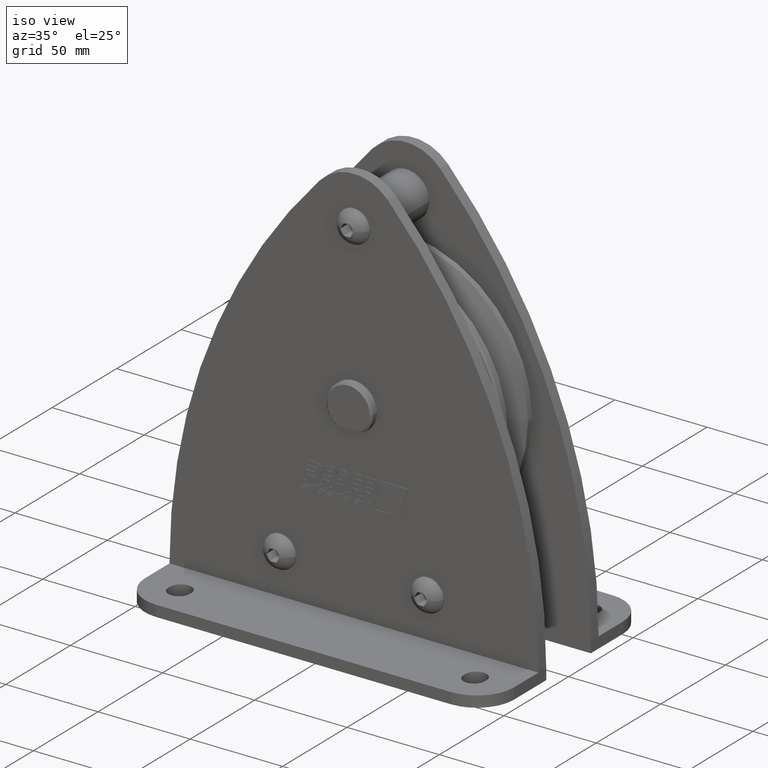
[diagram: clean part render]
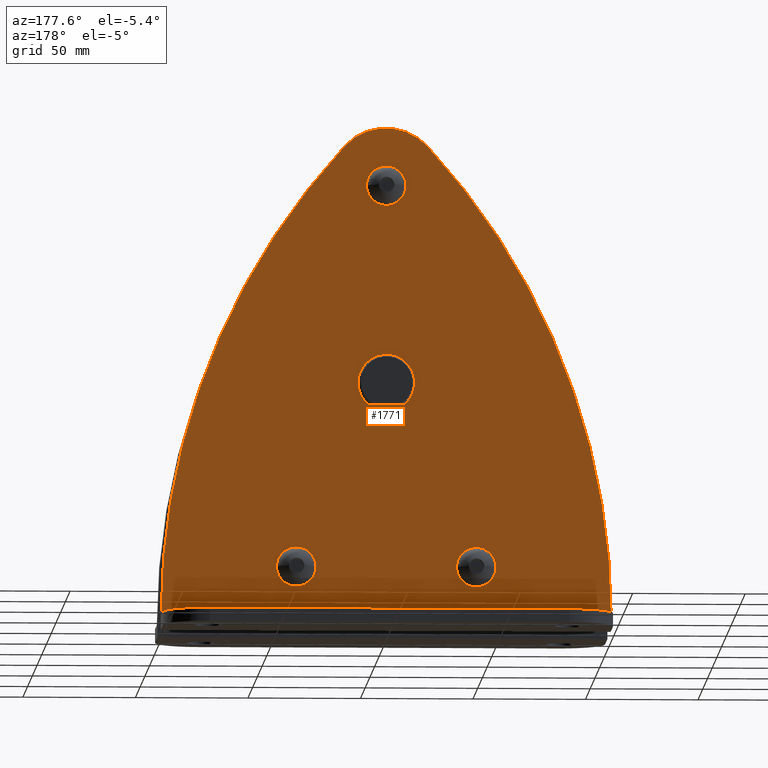
[diagram: tour spotlight — one face highlighted and labeled with its STEP entity id]
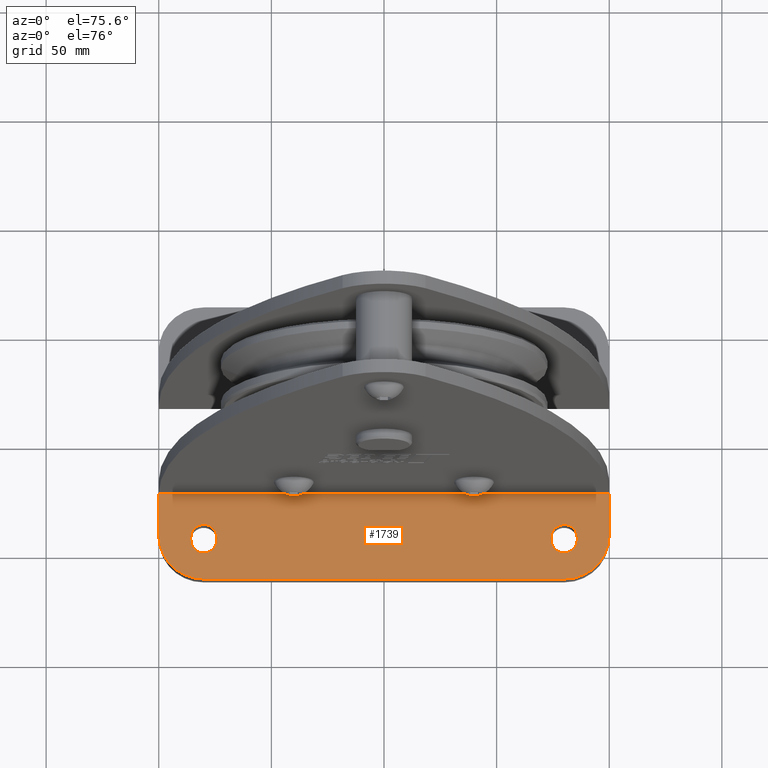
[diagram: tour spotlight — one face highlighted and labeled with its STEP entity id]
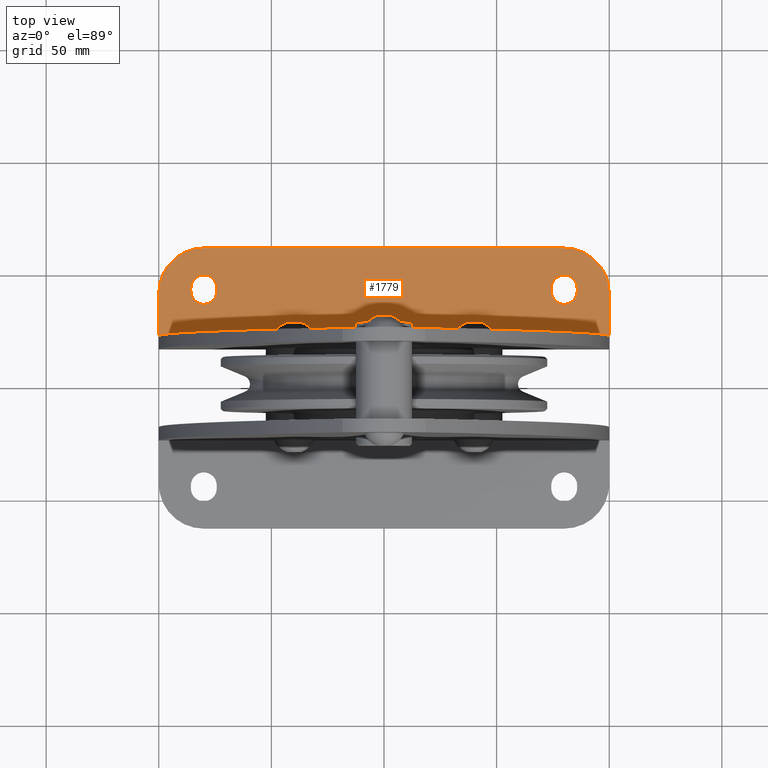
[diagram: tour spotlight — one face highlighted and labeled with its STEP entity id]
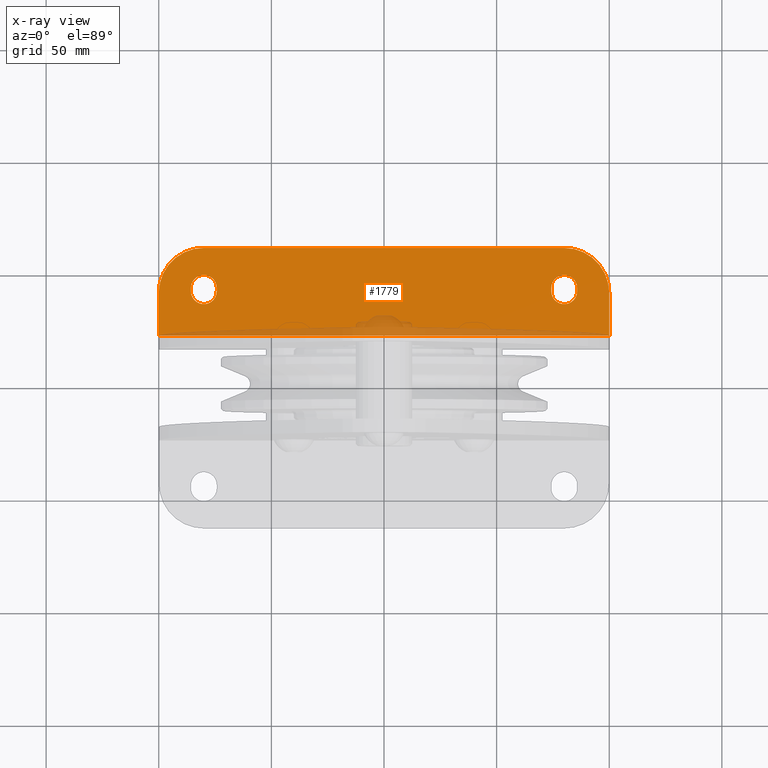
[diagram: x-ray of the same camera — body ghosted, this tour face saturated]
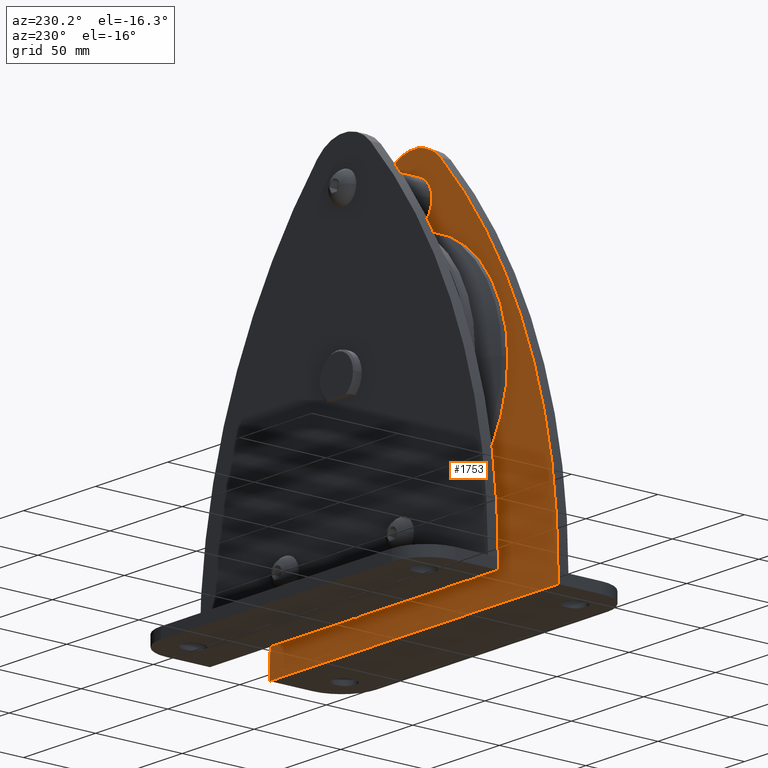
[diagram: tour spotlight — one face highlighted and labeled with its STEP entity id]
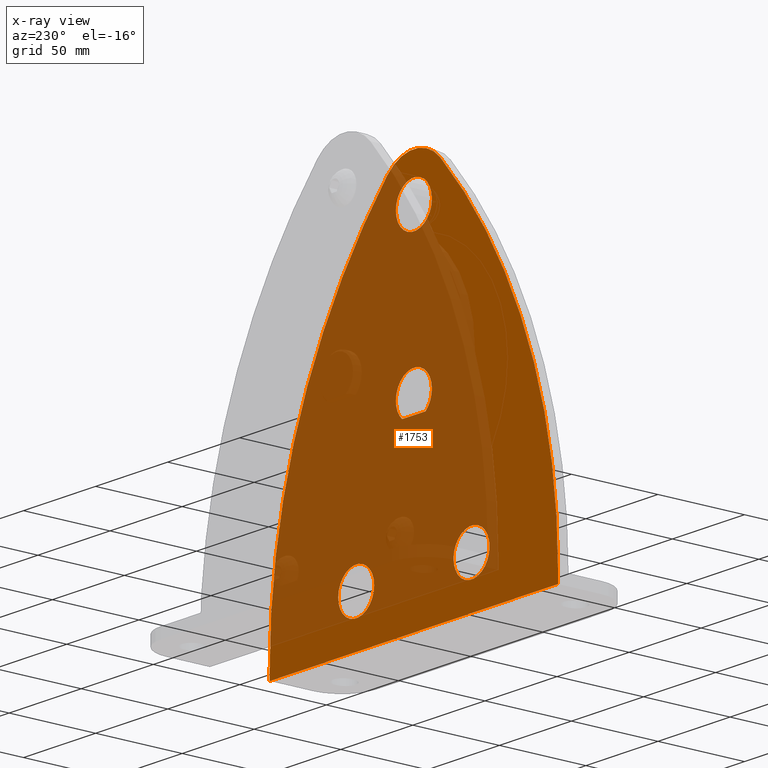
[diagram: x-ray of the same camera — body ghosted, this tour face saturated]
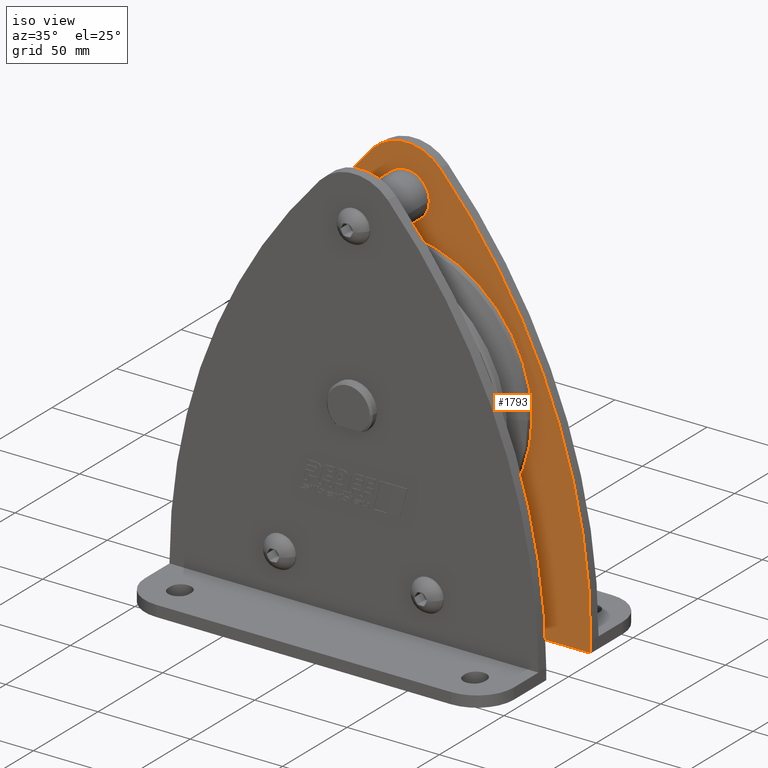
[diagram: tour spotlight — one face highlighted and labeled with its STEP entity id]
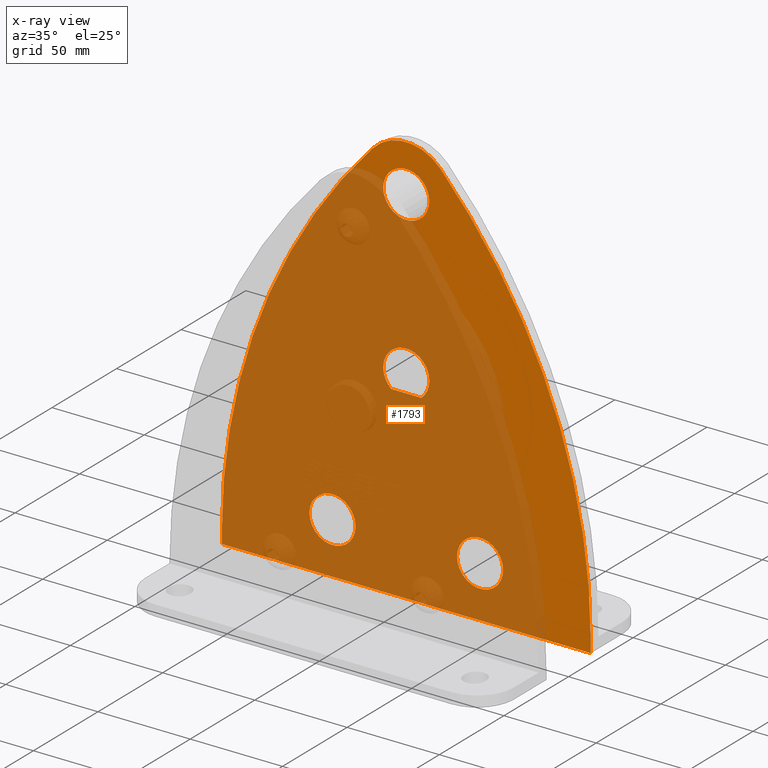
[diagram: x-ray of the same camera — body ghosted, this tour face saturated]
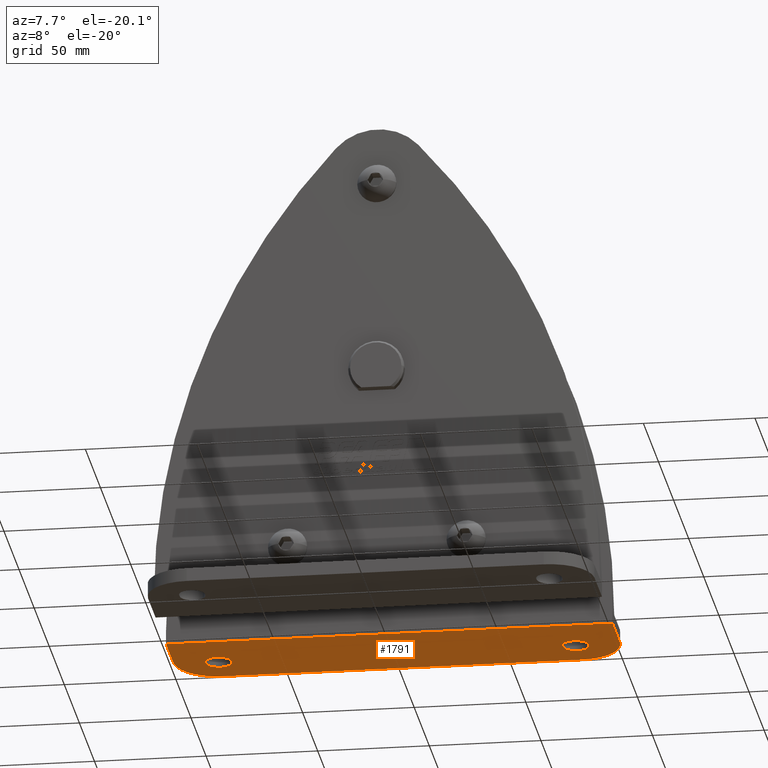
[diagram: tour spotlight — one face highlighted and labeled with its STEP entity id]
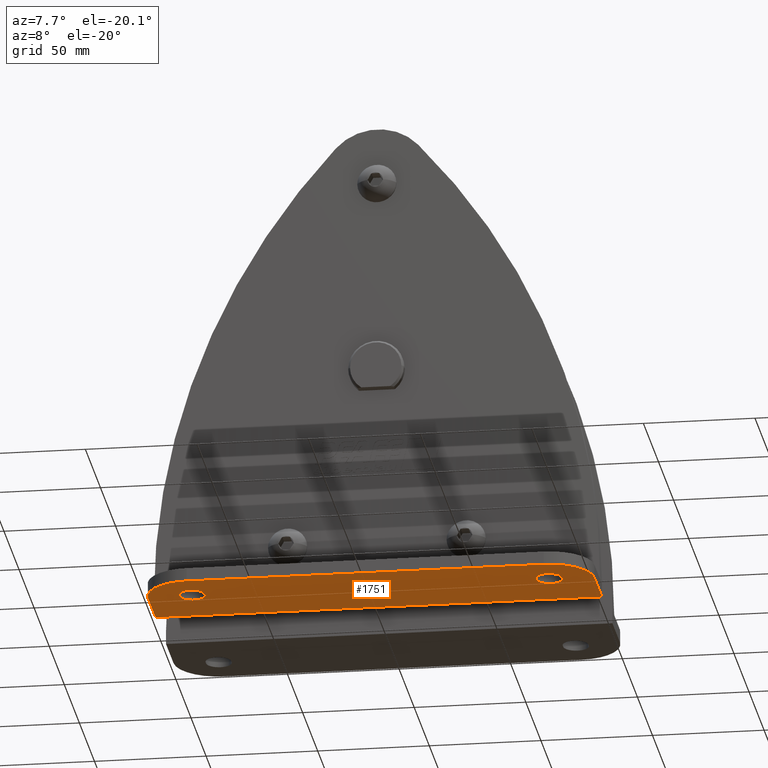
[diagram: tour spotlight — one face highlighted and labeled with its STEP entity id]
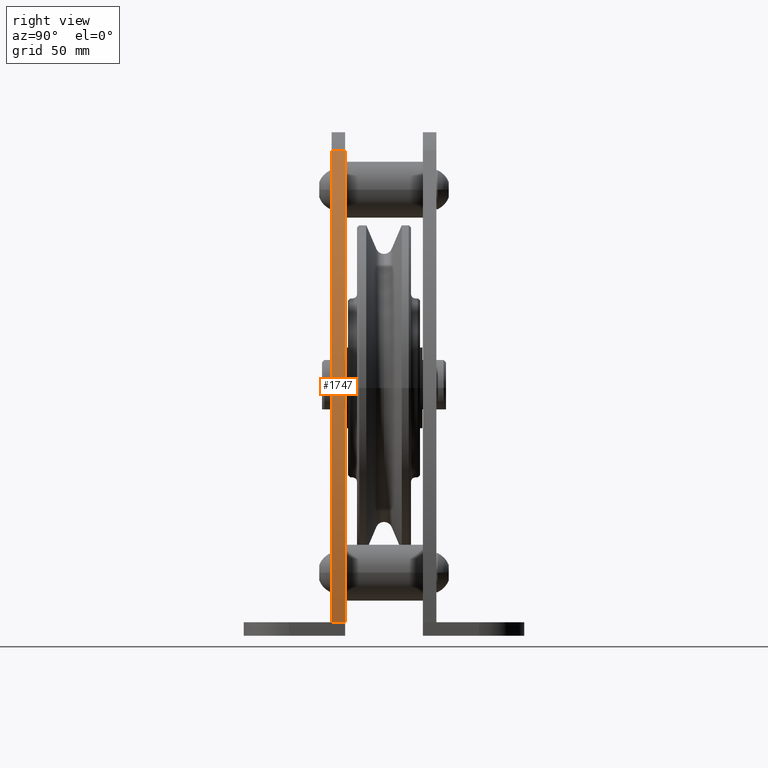
[diagram: tour spotlight — one face highlighted and labeled with its STEP entity id]
A machine part: a face-by-face anatomy tour. The part has 668 B-rep faces; the first image is the clean iso view, then the 8 largest visible faces are spotlighted one at a time (largest first), each with its STEP entity span.

Face 1 — auxiliary view, entity #1771. In plain terms, the highlighted planar face has unit normal (0, 1, 0).
Definition (entity closure, byte-faithful):
#1771=ADVANCED_FACE('',(#3725,#3726,#3727,#3728,#3729),#3730,.T.);
#3725=FACE_BOUND('',#5831,.T.);
#3726=FACE_BOUND('',#5832,.T.);
#3727=FACE_BOUND('',#5833,.T.);
#3728=FACE_OUTER_BOUND('',#5834,.T.);
#3729=FACE_BOUND('',#5835,.T.);
#3730=PLANE('',#5836);
#5831=EDGE_LOOP('',(#11465,#11466));
#5832=EDGE_LOOP('',(#11467,#11468));
#5833=EDGE_LOOP('',(#11469,#11470));
#5834=EDGE_LOOP('',(#11471,#11472,#11473,#11474));
#5835=EDGE_LOOP('',(#11475,#11476,#11477,#11478));
#5836=AXIS2_PLACEMENT_3D('',#11479,#11480,#11481);
#11465=ORIENTED_EDGE('',*,*,#12663,.T.);
#11466=ORIENTED_EDGE('',*,*,#14664,.T.);
#11467=ORIENTED_EDGE('',*,*,#13092,.T.);
#11468=ORIENTED_EDGE('',*,*,#14282,.T.);
#11469=ORIENTED_EDGE('',*,*,#12680,.T.);
#11470=ORIENTED_EDGE('',*,*,#14665,.T.);
#11471=ORIENTED_EDGE('',*,*,#14666,.T.);
#11472=ORIENTED_EDGE('',*,*,#14667,.F.);
#11473=ORIENTED_EDGE('',*,*,#14668,.F.);
#11474=ORIENTED_EDGE('',*,*,#14669,.F.);
#11475=ORIENTED_EDGE('',*,*,#14387,.T.);
#11476=ORIENTED_EDGE('',*,*,#13053,.T.);
#11477=ORIENTED_EDGE('',*,*,#13050,.T.);
#11478=ORIENTED_EDGE('',*,*,#14378,.T.);
#11479=CARTESIAN_POINT('',(9.95759030786303E-013,23.25,-22.7511777277924));
#11480=DIRECTION('',(0.0,1.0,0.0));
#11481=DIRECTION('',(-1.0,0.0,0.0));
#12663=EDGE_CURVE('',#15227,#15229,#15231,.T.);
#12680=EDGE_CURVE('',#15258,#15260,#15262,.T.);
#13050=EDGE_CURVE('',#15873,#15875,#15877,.T.);
#13053=EDGE_CURVE('',#15879,#15873,#15881,.T.);
#13092=EDGE_CURVE('',#15946,#15950,#15952,.T.);
#14282=EDGE_CURVE('',#15950,#15946,#17721,.T.);
#14378=EDGE_CURVE('',#15875,#17849,#17850,.T.);
#14387=EDGE_CURVE('',#17849,#15879,#17863,.T.);
#14664=EDGE_CURVE('',#15229,#15227,#18202,.T.);
#14665=EDGE_CURVE('',#15260,#15258,#18203,.T.);
#14666=EDGE_CURVE('',#18204,#18205,#18206,.T.);
#14667=EDGE_CURVE('',#18207,#18205,#18208,.T.);
#14668=EDGE_CURVE('',#18209,#18207,#18210,.T.);
#14669=EDGE_CURVE('',#18204,#18209,#18211,.T.);
#15227=VERTEX_POINT('',#19631);
#15229=VERTEX_POINT('',#19634);
#15231=CIRCLE('',#19637,8.75);
#15258=VERTEX_POINT('',#19682);
#15260=VERTEX_POINT('',#19685);
#15262=CIRCLE('',#19688,8.75);
#15873=VERTEX_POINT('',#21984);
#15875=VERTEX_POINT('',#21987);
#15877=CIRCLE('',#21990,12.5);
#15879=VERTEX_POINT('',#21992);
#15881=CIRCLE('',#21995,12.5);
#15946=VERTEX_POINT('',#22100);
#15950=VERTEX_POINT('',#22105);
#15952=CIRCLE('',#22108,8.75);
#17721=CIRCLE('',#24542,8.75);
#17849=VERTEX_POINT('',#24756);
#17850=LINE('',#24757,#24758);
#17863=CIRCLE('',#24785,12.5);
#18202=CIRCLE('',#25941,8.75);
#18203=CIRCLE('',#25942,8.75);
#18204=VERTEX_POINT('',#25943);
#18205=VERTEX_POINT('',#25944);
#18206=LINE('',#25945,#25946);
#18207=VERTEX_POINT('',#25947);
#18208=CIRCLE('',#25948,309.999999979701);
#18209=VERTEX_POINT('',#25949);
#18210=CIRCLE('',#25950,24.999999988);
#18211=CIRCLE('',#25951,309.999999979699);
#19631=CARTESIAN_POINT('',(-31.25,23.25,-82.0));
#19634=CARTESIAN_POINT('',(-48.75,23.25,-82.0));
#19637=AXIS2_PLACEMENT_3D('',#26768,#26769,#26770);
#19682=CARTESIAN_POINT('',(8.75,23.25,88.0));
#19685=CARTESIAN_POINT('',(-8.75,23.25,88.0));
#19688=AXIS2_PLACEMENT_3D('',#26791,#26792,#26793);
#21984=CARTESIAN_POINT('',(-12.5,23.25,1.53080849893419E-015));
#21987=CARTESIAN_POINT('',(-8.12403840463596,23.25,-9.5));
#21990=AXIS2_PLACEMENT_3D('',#27290,#27291,#27292);
#21992=CARTESIAN_POINT('',(12.5,23.25,-1.53080849893419E-015));
#21995=AXIS2_PLACEMENT_3D('',#27294,#27295,#27296);
#22100=CARTESIAN_POINT('',(48.75,23.25,-82.0));
#22105=CARTESIAN_POINT('',(31.25,23.25,-82.0));
#22108=AXIS2_PLACEMENT_3D('',#27348,#27349,#27350);
#24542=AXIS2_PLACEMENT_3D('',#28676,#28677,#28678);
#24756=CARTESIAN_POINT('',(8.12403840463596,23.25,-9.5));
#24757=CARTESIAN_POINT('',(0.0,23.25,-9.5));
#24758=VECTOR('',#28744,1.0);
#24785=AXIS2_PLACEMENT_3D('',#28750,#28751,#28752);
#25941=AXIS2_PLACEMENT_3D('',#29021,#29022,#29023);
#25942=AXIS2_PLACEMENT_3D('',#29024,#29025,#29026);
#25943=CARTESIAN_POINT('',(100.0,23.25,-103.999999999964));
#25944=CARTESIAN_POINT('',(-100.0,23.25,-104.0));
#25945=CARTESIAN_POINT('',(4.54747350886464E-013,23.25,-104.0));
#25946=VECTOR('',#29027,1.0);
#25947=CARTESIAN_POINT('',(-18.4210526299208,23.25,105.580110490116));
#25948=AXIS2_PLACEMENT_3D('',#29028,#29029,#29030);
#25949=CARTESIAN_POINT('',(18.421052630019,23.25,105.580110489983));
#25950=AXIS2_PLACEMENT_3D('',#29031,#29032,#29033);
#25951=AXIS2_PLACEMENT_3D('',#29034,#29035,#29036);
#26768=CARTESIAN_POINT('',(-40.0,23.25,-82.0));
#26769=DIRECTION('',(0.0,-1.0,0.0));
#26770=DIRECTION('',(1.0,0.0,0.0));
#26791=CARTESIAN_POINT('',(0.0,23.25,88.0));
#26792=DIRECTION('',(0.0,-1.0,0.0));
#26793=DIRECTION('',(1.0,0.0,0.0));
#27290=CARTESIAN_POINT('',(0.0,23.25,0.0));
#27291=DIRECTION('',(-0.0,-1.0,-0.0));
#27292=DIRECTION('',(-1.0,0.0,0.0));
#27294=CARTESIAN_POINT('',(0.0,23.25,0.0));
#27295=DIRECTION('',(-0.0,-1.0,-0.0));
#27296=DIRECTION('',(-1.0,0.0,0.0));
#27348=CARTESIAN_POINT('',(40.0,23.25,-82.0));
#27349=DIRECTION('',(0.0,-1.0,0.0));
#27350=DIRECTION('',(1.0,0.0,0.0));
#28676=CARTESIAN_POINT('',(40.0,23.25,-82.0));
#28677=DIRECTION('',(0.0,-1.0,0.0));
#28678=DIRECTION('',(1.0,0.0,0.0));
#28744=DIRECTION('',(1.0,0.0,0.0));
#28750=CARTESIAN_POINT('',(0.0,23.25,0.0));
#28751=DIRECTION('',(-0.0,-1.0,-0.0));
#28752=DIRECTION('',(-1.0,0.0,0.0));
#29021=CARTESIAN_POINT('',(-40.0,23.25,-82.0));
#29022=DIRECTION('',(0.0,-1.0,0.0));
#29023=DIRECTION('',(1.0,0.0,0.0));
#29024=CARTESIAN_POINT('',(0.0,23.25,88.0));
#29025=DIRECTION('',(0.0,-1.0,0.0));
#29026=DIRECTION('',(1.0,0.0,0.0));
#29027=DIRECTION('',(-1.0,0.0,0.0));
#29028=CARTESIAN_POINT('',(209.999999979701,23.25,-103.9999999978));
#29029=DIRECTION('',(0.0,-1.0,-0.0));
#29030=DIRECTION('',(-1.0,0.0,-6.97995926336286E-012));
#29031=CARTESIAN_POINT('',(0.0,23.25,88.678488692));
#29032=DIRECTION('',(0.0,-1.0,0.0));
#29033=DIRECTION('',(-0.736842105554445,0.0,0.676064872243849));
#29034=CARTESIAN_POINT('',(-209.999999979699,23.25,-103.9999999978));
#29035=DIRECTION('',(0.0,-1.0,0.0));
#29036=DIRECTION('',(0.736842105240575,0.0,0.676064872585936));

Face 2 — auxiliary view, entity #1739. In plain terms, the highlighted planar face has unit normal (0, 0, 1).
Definition (entity closure, byte-faithful):
#1739=ADVANCED_FACE('',(#3669,#3670,#3671),#3672,.T.);
#3669=FACE_BOUND('',#5775,.T.);
#3670=FACE_BOUND('',#5776,.T.);
#3671=FACE_OUTER_BOUND('',#5777,.T.);
#3672=PLANE('',#5778);
#5775=EDGE_LOOP('',(#11303,#11304,#11305,#11306));
#5776=EDGE_LOOP('',(#11307,#11308,#11309,#11310));
#5777=EDGE_LOOP('',(#11311,#11312,#11313,#11314,#11315,#11316));
#5778=AXIS2_PLACEMENT_3D('',#11317,#11318,#11319);
#11303=ORIENTED_EDGE('',*,*,#14566,.T.);
#11304=ORIENTED_EDGE('',*,*,#14577,.T.);
#11305=ORIENTED_EDGE('',*,*,#14574,.T.);
#11306=ORIENTED_EDGE('',*,*,#14569,.T.);
#11307=ORIENTED_EDGE('',*,*,#14582,.T.);
#11308=ORIENTED_EDGE('',*,*,#14593,.T.);
#11309=ORIENTED_EDGE('',*,*,#14590,.T.);
#11310=ORIENTED_EDGE('',*,*,#14585,.T.);
#11311=ORIENTED_EDGE('',*,*,#14597,.F.);
#11312=ORIENTED_EDGE('',*,*,#14607,.F.);
#11313=ORIENTED_EDGE('',*,*,#14602,.F.);
#11314=ORIENTED_EDGE('',*,*,#14610,.F.);
#11315=ORIENTED_EDGE('',*,*,#13387,.F.);
#11316=ORIENTED_EDGE('',*,*,#14611,.F.);
#11317=CARTESIAN_POINT('',(9.32587340685131E-014,-41.8635175654384,-104.0));
#11318=DIRECTION('',(0.0,0.0,1.0));
#11319=DIRECTION('',(1.0,0.0,0.0));
#13387=EDGE_CURVE('',#16488,#16489,#16490,.T.);
#14566=EDGE_CURVE('',#18061,#18059,#18062,.T.);
#14569=EDGE_CURVE('',#18065,#18061,#18066,.T.);
#14574=EDGE_CURVE('',#18073,#18065,#18074,.T.);
#14577=EDGE_CURVE('',#18059,#18073,#18077,.T.);
#14582=EDGE_CURVE('',#18085,#18083,#18086,.T.);
#14585=EDGE_CURVE('',#18089,#18085,#18090,.T.);
#14590=EDGE_CURVE('',#18097,#18089,#18098,.T.);
#14593=EDGE_CURVE('',#18083,#18097,#18101,.T.);
#14597=EDGE_CURVE('',#18105,#18106,#18107,.T.);
#14602=EDGE_CURVE('',#18114,#18115,#18116,.T.);
#14607=EDGE_CURVE('',#18115,#18105,#18123,.T.);
#14610=EDGE_CURVE('',#16489,#18114,#18126,.T.);
#14611=EDGE_CURVE('',#18106,#16488,#18127,.T.);
#16488=VERTEX_POINT('',#22825);
#16489=VERTEX_POINT('',#22826);
#16490=LINE('',#22827,#22828);
#18059=VERTEX_POINT('',#25749);
#18061=VERTEX_POINT('',#25752);
#18062=CIRCLE('',#25753,5.75);
#18065=VERTEX_POINT('',#25757);
#18066=LINE('',#25758,#25759);
#18073=VERTEX_POINT('',#25768);
#18074=CIRCLE('',#25769,5.75);
#18077=LINE('',#25773,#25774);
#18083=VERTEX_POINT('',#25781);
#18085=VERTEX_POINT('',#25784);
#18086=CIRCLE('',#25785,5.75);
#18089=VERTEX_POINT('',#25789);
#18090=LINE('',#25790,#25791);
#18097=VERTEX_POINT('',#25800);
#18098=CIRCLE('',#25801,5.75);
#18101=LINE('',#25805,#25806);
#18105=VERTEX_POINT('',#25811);
#18106=VERTEX_POINT('',#25812);
#18107=CIRCLE('',#25813,20.0000000127);
#18114=VERTEX_POINT('',#25822);
#18115=VERTEX_POINT('',#25823);
#18116=CIRCLE('',#25824,20.0000000127);
#18123=LINE('',#25833,#25834);
#18126=LINE('',#25838,#25839);
#18127=LINE('',#25840,#25841);
#22825=CARTESIAN_POINT('',(-100.0,-23.25,-103.999999999964));
#22826=CARTESIAN_POINT('',(100.0,-23.25,-104.0));
#22827=CARTESIAN_POINT('',(-4.54747350886464E-013,-23.25,-104.0));
#22828=VECTOR('',#27808,1.0);
#25749=CARTESIAN_POINT('',(74.25,-44.5,-104.0));
#25752=CARTESIAN_POINT('',(85.75,-44.5,-104.0));
#25753=AXIS2_PLACEMENT_3D('',#28907,#28908,#28909);
#25757=CARTESIAN_POINT('',(85.75,-43.0,-104.0));
#25758=CARTESIAN_POINT('',(85.75,-42.8067587827192,-104.0));
#25759=VECTOR('',#28911,1.0);
#25768=CARTESIAN_POINT('',(74.25,-43.0,-104.0));
#25769=AXIS2_PLACEMENT_3D('',#28917,#28918,#28919);
#25773=CARTESIAN_POINT('',(74.25,-42.8067587827192,-104.0));
#25774=VECTOR('',#28921,1.0);
#25781=CARTESIAN_POINT('',(-85.75,-44.5,-104.0));
#25784=CARTESIAN_POINT('',(-74.25,-44.5,-104.0));
#25785=AXIS2_PLACEMENT_3D('',#28927,#28928,#28929);
#25789=CARTESIAN_POINT('',(-74.25,-43.0,-104.0));
#25790=CARTESIAN_POINT('',(-74.25,-42.8067587827192,-104.0));
#25791=VECTOR('',#28931,1.0);
#25800=CARTESIAN_POINT('',(-85.75,-43.0,-104.0));
#25801=AXIS2_PLACEMENT_3D('',#28937,#28938,#28939);
#25805=CARTESIAN_POINT('',(-85.75,-42.8067587827192,-104.0));
#25806=VECTOR('',#28941,1.0);
#25811=CARTESIAN_POINT('',(-80.0,-62.25,-104.0));
#25812=CARTESIAN_POINT('',(-100.0,-42.25,-104.0));
#25813=AXIS2_PLACEMENT_3D('',#28943,#28944,#28945);
#25822=CARTESIAN_POINT('',(100.0,-42.2500000000409,-104.0));
#25823=CARTESIAN_POINT('',(80.0,-62.25,-104.0));
#25824=AXIS2_PLACEMENT_3D('',#28951,#28952,#28953);
#25833=CARTESIAN_POINT('',(-80.0,-62.25,-104.0));
#25834=VECTOR('',#28959,1.0);
#25838=CARTESIAN_POINT('',(100.0,-42.25,-104.0));
#25839=VECTOR('',#28961,1.0);
#25840=CARTESIAN_POINT('',(-100.0,-23.25,-104.0));
#25841=VECTOR('',#28962,1.0);
#27808=DIRECTION('',(1.0,0.0,-0.0));
#28907=CARTESIAN_POINT('',(80.0,-44.5,-104.0));
#28908=DIRECTION('',(0.0,0.0,-1.0));
#28909=DIRECTION('',(1.0,5.02013889395723E-016,0.0));
#28911=DIRECTION('',(-0.0,-1.0,0.0));
#28917=CARTESIAN_POINT('',(80.0,-43.0,-104.0));
#28918=DIRECTION('',(-0.0,0.0,-1.0));
#28919=DIRECTION('',(-1.0,-2.31698718182641E-016,0.0));
#28921=DIRECTION('',(0.0,1.0,-0.0));
#28927=CARTESIAN_POINT('',(-80.0,-44.5,-104.0));
#28928=DIRECTION('',(0.0,0.0,-1.0));
#28929=DIRECTION('',(1.0,5.02013889395723E-016,0.0));
#28931=DIRECTION('',(-0.0,-1.0,0.0));
#28937=CARTESIAN_POINT('',(-80.0,-43.0,-104.0));
#28938=DIRECTION('',(-0.0,0.0,-1.0));
#28939=DIRECTION('',(-1.0,-2.31698718182641E-016,0.0));
#28941=DIRECTION('',(0.0,1.0,-0.0));
#28943=CARTESIAN_POINT('',(-79.9999999873,-42.2499999873,-104.0));
#28944=DIRECTION('',(-0.0,0.0,-1.0));
#28945=DIRECTION('',(-1.0,-6.37044905311288E-010,0.0));
#28951=CARTESIAN_POINT('',(79.9999999873,-42.2499999873,-104.0));
#28952=DIRECTION('',(0.0,-0.0,-1.0));
#28953=DIRECTION('',(6.37043484225818E-010,-1.0,0.0));
#28959=DIRECTION('',(-1.0,-0.0,-0.0));
#28961=DIRECTION('',(-0.0,-1.0,-0.0));
#28962=DIRECTION('',(0.0,1.0,0.0));

Face 3 — top view, entity #1779. An x-ray twin of the same camera follows (body ghosted, this face saturated) — the face is partly hidden behind the body. In plain terms, the highlighted planar face has unit normal (0, 0, 1).
Definition (entity closure, byte-faithful):
#1779=ADVANCED_FACE('',(#3741,#3742,#3743),#3744,.T.);
#3741=FACE_BOUND('',#5847,.T.);
#3742=FACE_BOUND('',#5848,.T.);
#3743=FACE_OUTER_BOUND('',#5849,.T.);
#3744=PLANE('',#5850);
#5847=EDGE_LOOP('',(#11507,#11508,#11509,#11510));
#5848=EDGE_LOOP('',(#11511,#11512,#11513,#11514));
#5849=EDGE_LOOP('',(#11515,#11516,#11517,#11518,#11519,#11520));
#5850=AXIS2_PLACEMENT_3D('',#11521,#11522,#11523);
#11507=ORIENTED_EDGE('',*,*,#14634,.T.);
#11508=ORIENTED_EDGE('',*,*,#14645,.T.);
#11509=ORIENTED_EDGE('',*,*,#14642,.T.);
#11510=ORIENTED_EDGE('',*,*,#14637,.T.);
#11511=ORIENTED_EDGE('',*,*,#14650,.T.);
#11512=ORIENTED_EDGE('',*,*,#14661,.T.);
#11513=ORIENTED_EDGE('',*,*,#14658,.T.);
#11514=ORIENTED_EDGE('',*,*,#14653,.T.);
#11515=ORIENTED_EDGE('',*,*,#14671,.F.);
#11516=ORIENTED_EDGE('',*,*,#14681,.F.);
#11517=ORIENTED_EDGE('',*,*,#14676,.F.);
#11518=ORIENTED_EDGE('',*,*,#14684,.F.);
#11519=ORIENTED_EDGE('',*,*,#14666,.F.);
#11520=ORIENTED_EDGE('',*,*,#14685,.F.);
#11521=CARTESIAN_POINT('',(-9.32587340685131E-014,41.8635175654384,-104.0));
#11522=DIRECTION('',(0.0,0.0,1.0));
#11523=DIRECTION('',(-1.0,0.0,0.0));
#14634=EDGE_CURVE('',#18159,#18157,#18160,.T.);
#14637=EDGE_CURVE('',#18163,#18159,#18164,.T.);
#14642=EDGE_CURVE('',#18171,#18163,#18172,.T.);
#14645=EDGE_CURVE('',#18157,#18171,#18175,.T.);
#14650=EDGE_CURVE('',#18183,#18181,#18184,.T.);
#14653=EDGE_CURVE('',#18187,#18183,#18188,.T.);
#14658=EDGE_CURVE('',#18195,#18187,#18196,.T.);
#14661=EDGE_CURVE('',#18181,#18195,#18199,.T.);
#14666=EDGE_CURVE('',#18204,#18205,#18206,.T.);
#14671=EDGE_CURVE('',#18213,#18214,#18215,.T.);
#14676=EDGE_CURVE('',#18222,#18223,#18224,.T.);
#14681=EDGE_CURVE('',#18223,#18213,#18231,.T.);
#14684=EDGE_CURVE('',#18205,#18222,#18234,.T.);
#14685=EDGE_CURVE('',#18214,#18204,#18235,.T.);
#18157=VERTEX_POINT('',#25880);
#18159=VERTEX_POINT('',#25883);
#18160=CIRCLE('',#25884,5.75);
#18163=VERTEX_POINT('',#25888);
#18164=LINE('',#25889,#25890);
#18171=VERTEX_POINT('',#25899);
#18172=CIRCLE('',#25900,5.75);
#18175=LINE('',#25904,#25905);
#18181=VERTEX_POINT('',#25912);
#18183=VERTEX_POINT('',#25915);
#18184=CIRCLE('',#25916,5.75);
#18187=VERTEX_POINT('',#25920);
#18188=LINE('',#25921,#25922);
#18195=VERTEX_POINT('',#25931);
#18196=CIRCLE('',#25932,5.75);
#18199=LINE('',#25936,#25937);
#18204=VERTEX_POINT('',#25943);
#18205=VERTEX_POINT('',#25944);
#18206=LINE('',#25945,#25946);
#18213=VERTEX_POINT('',#25953);
#18214=VERTEX_POINT('',#25954);
#18215=CIRCLE('',#25955,20.0000000127);
#18222=VERTEX_POINT('',#25964);
#18223=VERTEX_POINT('',#25965);
#18224=CIRCLE('',#25966,20.0000000127);
#18231=LINE('',#25975,#25976);
#18234=LINE('',#25980,#25981);
#18235=LINE('',#25982,#25983);
#25880=CARTESIAN_POINT('',(-74.25,44.5,-104.0));
#25883=CARTESIAN_POINT('',(-85.75,44.5,-104.0));
#25884=AXIS2_PLACEMENT_3D('',#28985,#28986,#28987);
#25888=CARTESIAN_POINT('',(-85.75,43.0,-104.0));
#25889=CARTESIAN_POINT('',(-85.75,42.8067587827192,-104.0));
#25890=VECTOR('',#28989,1.0);
#25899=CARTESIAN_POINT('',(-74.25,43.0,-104.0));
#25900=AXIS2_PLACEMENT_3D('',#28995,#28996,#28997);
#25904=CARTESIAN_POINT('',(-74.25,42.8067587827192,-104.0));
#25905=VECTOR('',#28999,1.0);
#25912=CARTESIAN_POINT('',(85.75,44.5,-104.0));
#25915=CARTESIAN_POINT('',(74.25,44.5,-104.0));
#25916=AXIS2_PLACEMENT_3D('',#29005,#29006,#29007);
#25920=CARTESIAN_POINT('',(74.25,43.0,-104.0));
#25921=CARTESIAN_POINT('',(74.25,42.8067587827192,-104.0));
#25922=VECTOR('',#29009,1.0);
#25931=CARTESIAN_POINT('',(85.75,43.0,-104.0));
#25932=AXIS2_PLACEMENT_3D('',#29015,#29016,#29017);
#25936=CARTESIAN_POINT('',(85.75,42.8067587827192,-104.0));
#25937=VECTOR('',#29019,1.0);
#25943=CARTESIAN_POINT('',(100.0,23.25,-103.999999999964));
#25944=CARTESIAN_POINT('',(-100.0,23.25,-104.0));
#25945=CARTESIAN_POINT('',(4.54747350886464E-013,23.25,-104.0));
#25946=VECTOR('',#29027,1.0);
#25953=CARTESIAN_POINT('',(80.0,62.25,-104.0));
#25954=CARTESIAN_POINT('',(100.0,42.25,-104.0));
#25955=AXIS2_PLACEMENT_3D('',#29037,#29038,#29039);
#25964=CARTESIAN_POINT('',(-100.0,42.2500000000409,-104.0));
#25965=CARTESIAN_POINT('',(-80.0,62.25,-104.0));
#25966=AXIS2_PLACEMENT_3D('',#29045,#29046,#29047);
#25975=CARTESIAN_POINT('',(80.0,62.25,-104.0));
#25976=VECTOR('',#29053,1.0);
#25980=CARTESIAN_POINT('',(-100.0,42.25,-104.0));
#25981=VECTOR('',#29055,1.0);
#25982=CARTESIAN_POINT('',(100.0,23.25,-104.0));
#25983=VECTOR('',#29056,1.0);
#28985=CARTESIAN_POINT('',(-80.0,44.5,-104.0));
#28986=DIRECTION('',(-0.0,0.0,-1.0));
#28987=DIRECTION('',(-1.0,-5.02013889395723E-016,0.0));
#28989=DIRECTION('',(0.0,1.0,-0.0));
#28995=CARTESIAN_POINT('',(-80.0,43.0,-104.0));
#28996=DIRECTION('',(0.0,0.0,-1.0));
#28997=DIRECTION('',(1.0,2.31698718182641E-016,0.0));
#28999=DIRECTION('',(0.0,-1.0,0.0));
#29005=CARTESIAN_POINT('',(80.0,44.5,-104.0));
#29006=DIRECTION('',(-0.0,0.0,-1.0));
#29007=DIRECTION('',(-1.0,-5.02013889395723E-016,0.0));
#29009=DIRECTION('',(0.0,1.0,-0.0));
#29015=CARTESIAN_POINT('',(80.0,43.0,-104.0));
#29016=DIRECTION('',(0.0,0.0,-1.0));
#29017=DIRECTION('',(1.0,2.31698718182641E-016,0.0));
#29019=DIRECTION('',(0.0,-1.0,0.0));
#29027=DIRECTION('',(-1.0,0.0,0.0));
#29037=CARTESIAN_POINT('',(79.9999999873,42.2499999873,-104.0));
#29038=DIRECTION('',(0.0,0.0,-1.0));
#29039=DIRECTION('',(1.0,6.37044905311288E-010,0.0));
#29045=CARTESIAN_POINT('',(-79.9999999873,42.2499999873,-104.0));
#29046=DIRECTION('',(0.0,0.0,-1.0));
#29047=DIRECTION('',(-6.37043484225818E-010,1.0,0.0));
#29053=DIRECTION('',(1.0,0.0,-0.0));
#29055=DIRECTION('',(0.0,1.0,-0.0));
#29056=DIRECTION('',(0.0,-1.0,0.0));

Face 4 — auxiliary view, entity #1753. An x-ray twin of the same camera follows (body ghosted, this face saturated) — the face is partly hidden behind the body. In plain terms, the highlighted planar face has unit normal (0, -1, 0).
Definition (entity closure, byte-faithful):
#1753=ADVANCED_FACE('',(#3694,#3695,#3696,#3697,#3698),#3699,.F.);
#3694=FACE_BOUND('',#5800,.T.);
#3695=FACE_BOUND('',#5801,.T.);
#3696=FACE_BOUND('',#5802,.T.);
#3697=FACE_BOUND('',#5803,.T.);
#3698=FACE_OUTER_BOUND('',#5804,.T.);
#3699=PLANE('',#5805);
#5800=EDGE_LOOP('',(#11381,#11382));
#5801=EDGE_LOOP('',(#11383,#11384));
#5802=EDGE_LOOP('',(#11385,#11386));
#5803=EDGE_LOOP('',(#11387,#11388,#11389,#11390));
#5804=EDGE_LOOP('',(#11391,#11392,#11393,#11394,#11395,#11396));
#5805=AXIS2_PLACEMENT_3D('',#11397,#11398,#11399);
#11381=ORIENTED_EDGE('',*,*,#12712,.T.);
#11382=ORIENTED_EDGE('',*,*,#14555,.T.);
#11383=ORIENTED_EDGE('',*,*,#12707,.T.);
#11384=ORIENTED_EDGE('',*,*,#14558,.T.);
#11385=ORIENTED_EDGE('',*,*,#12702,.T.);
#11386=ORIENTED_EDGE('',*,*,#14561,.T.);
#11387=ORIENTED_EDGE('',*,*,#14400,.T.);
#11388=ORIENTED_EDGE('',*,*,#13025,.T.);
#11389=ORIENTED_EDGE('',*,*,#13021,.T.);
#11390=ORIENTED_EDGE('',*,*,#14374,.T.);
#11391=ORIENTED_EDGE('',*,*,#14629,.F.);
#11392=ORIENTED_EDGE('',*,*,#14615,.F.);
#11393=ORIENTED_EDGE('',*,*,#14618,.F.);
#11394=ORIENTED_EDGE('',*,*,#14621,.F.);
#11395=ORIENTED_EDGE('',*,*,#14624,.F.);
#11396=ORIENTED_EDGE('',*,*,#14627,.F.);
#11397=CARTESIAN_POINT('',(-9.96536186903541E-013,-17.25,-22.7511777277924));
#11398=DIRECTION('',(0.0,-1.0,0.0));
#11399=DIRECTION('',(1.0,0.0,0.0));
#12702=EDGE_CURVE('',#15296,#15300,#15302,.T.);
#12707=EDGE_CURVE('',#15305,#15309,#15311,.T.);
#12712=EDGE_CURVE('',#15314,#15318,#15320,.T.);
#13021=EDGE_CURVE('',#15824,#15829,#15831,.T.);
#13025=EDGE_CURVE('',#15834,#15824,#15837,.T.);
#14374=EDGE_CURVE('',#15829,#17843,#17844,.T.);
#14400=EDGE_CURVE('',#17843,#15834,#17876,.T.);
#14555=EDGE_CURVE('',#15318,#15314,#18047,.T.);
#14558=EDGE_CURVE('',#15309,#15305,#18050,.T.);
#14561=EDGE_CURVE('',#15300,#15296,#18053,.T.);
#14615=EDGE_CURVE('',#18131,#18129,#18133,.T.);
#14618=EDGE_CURVE('',#18135,#18131,#18137,.T.);
#14621=EDGE_CURVE('',#18139,#18135,#18141,.T.);
#14624=EDGE_CURVE('',#18143,#18139,#18145,.T.);
#14627=EDGE_CURVE('',#18147,#18143,#18149,.T.);
#14629=EDGE_CURVE('',#18129,#18147,#18151,.T.);
#15296=VERTEX_POINT('',#19742);
#15300=VERTEX_POINT('',#19747);
#15302=CIRCLE('',#19750,12.5);
#15305=VERTEX_POINT('',#19753);
#15309=VERTEX_POINT('',#19758);
#15311=CIRCLE('',#19761,12.5);
#15314=VERTEX_POINT('',#19764);
#15318=VERTEX_POINT('',#19769);
#15320=CIRCLE('',#19772,12.5);
#15824=VERTEX_POINT('',#21924);
#15829=VERTEX_POINT('',#21930);
#15831=CIRCLE('',#21933,12.5);
#15834=VERTEX_POINT('',#21936);
#15837=CIRCLE('',#21940,12.5);
#17843=VERTEX_POINT('',#24747);
#17844=LINE('',#24748,#24749);
#17876=CIRCLE('',#24798,12.5);
#18047=CIRCLE('',#25737,12.5);
#18050=CIRCLE('',#25740,12.5);
#18053=CIRCLE('',#25743,12.5);
#18129=VERTEX_POINT('',#25843);
#18131=VERTEX_POINT('',#25846);
#18133=LINE('',#25849,#25850);
#18135=VERTEX_POINT('',#25852);
#18137=CIRCLE('',#25855,309.999999979699);
#18139=VERTEX_POINT('',#25857);
#18141=CIRCLE('',#25860,24.999999988);
#18143=VERTEX_POINT('',#25862);
#18145=CIRCLE('',#25865,309.999999979701);
#18147=VERTEX_POINT('',#25867);
#18149=LINE('',#25870,#25871);
#18151=LINE('',#25873,#25874);
#19742=CARTESIAN_POINT('',(12.5,-17.25,88.0));
#19747=CARTESIAN_POINT('',(-12.5,-17.25,88.0));
#19750=AXIS2_PLACEMENT_3D('',#26822,#26823,#26824);
#19753=CARTESIAN_POINT('',(52.5,-17.25,-82.0));
#19758=CARTESIAN_POINT('',(27.5,-17.25,-82.0));
#19761=AXIS2_PLACEMENT_3D('',#26830,#26831,#26832);
#19764=CARTESIAN_POINT('',(-27.5,-17.25,-82.0));
#19769=CARTESIAN_POINT('',(-52.5,-17.25,-82.0));
#19772=AXIS2_PLACEMENT_3D('',#26838,#26839,#26840);
#21924=CARTESIAN_POINT('',(-12.5,-17.25,1.53080849893419E-015));
#21930=CARTESIAN_POINT('',(-8.12403840463596,-17.25,-9.5));
#21933=AXIS2_PLACEMENT_3D('',#27246,#27247,#27248);
#21936=CARTESIAN_POINT('',(12.5,-17.25,-1.53080849893419E-015));
#21940=AXIS2_PLACEMENT_3D('',#27253,#27254,#27255);
#24747=CARTESIAN_POINT('',(8.12403840463596,-17.25,-9.5));
#24748=CARTESIAN_POINT('',(0.0,-17.25,-9.5));
#24749=VECTOR('',#28741,1.0);
#24798=AXIS2_PLACEMENT_3D('',#28774,#28775,#28776);
#25737=AXIS2_PLACEMENT_3D('',#28885,#28886,#28887);
#25740=AXIS2_PLACEMENT_3D('',#28891,#28892,#28893);
#25743=AXIS2_PLACEMENT_3D('',#28897,#28898,#28899);
#25843=CARTESIAN_POINT('',(-100.0,-17.25,-110.0));
#25846=CARTESIAN_POINT('',(-100.0,-17.25,-103.999999999964));
#25849=CARTESIAN_POINT('',(-100.0,-17.25,-104.0));
#25850=VECTOR('',#28965,1.0);
#25852=CARTESIAN_POINT('',(-18.421052630019,-17.25,105.580110489983));
#25855=AXIS2_PLACEMENT_3D('',#28967,#28968,#28969);
#25857=CARTESIAN_POINT('',(18.4210526299208,-17.25,105.580110490116));
#25860=AXIS2_PLACEMENT_3D('',#28971,#28972,#28973);
#25862=CARTESIAN_POINT('',(100.0,-17.25,-104.0));
#25865=AXIS2_PLACEMENT_3D('',#28975,#28976,#28977);
#25867=CARTESIAN_POINT('',(100.0,-17.25,-110.0));
#25870=CARTESIAN_POINT('',(100.0,-17.25,-110.0));
#25871=VECTOR('',#28979,1.0);
#25873=CARTESIAN_POINT('',(-100.0,-17.25,-110.0));
#25874=VECTOR('',#28980,1.0);
#26822=CARTESIAN_POINT('',(0.0,-17.25,88.0));
#26823=DIRECTION('',(0.0,-1.0,0.0));
#26824=DIRECTION('',(1.0,0.0,0.0));
#26830=CARTESIAN_POINT('',(40.0,-17.25,-82.0));
#26831=DIRECTION('',(0.0,-1.0,0.0));
#26832=DIRECTION('',(1.0,0.0,0.0));
#26838=CARTESIAN_POINT('',(-40.0,-17.25,-82.0));
#26839=DIRECTION('',(0.0,-1.0,0.0));
#26840=DIRECTION('',(1.0,0.0,0.0));
#27246=CARTESIAN_POINT('',(0.0,-17.25,0.0));
#27247=DIRECTION('',(0.0,-1.0,0.0));
#27248=DIRECTION('',(1.0,0.0,0.0));
#27253=CARTESIAN_POINT('',(0.0,-17.25,0.0));
#27254=DIRECTION('',(0.0,-1.0,0.0));
#27255=DIRECTION('',(1.0,0.0,0.0));
#28741=DIRECTION('',(1.0,0.0,0.0));
#28774=CARTESIAN_POINT('',(0.0,-17.25,0.0));
#28775=DIRECTION('',(0.0,-1.0,0.0));
#28776=DIRECTION('',(1.0,0.0,0.0));
#28885=CARTESIAN_POINT('',(-40.0,-17.25,-82.0));
#28886=DIRECTION('',(0.0,-1.0,0.0));
#28887=DIRECTION('',(1.0,0.0,0.0));
#28891=CARTESIAN_POINT('',(40.0,-17.25,-82.0));
#28892=DIRECTION('',(0.0,-1.0,0.0));
#28893=DIRECTION('',(1.0,0.0,0.0));
#28897=CARTESIAN_POINT('',(0.0,-17.25,88.0));
#28898=DIRECTION('',(0.0,-1.0,0.0));
#28899=DIRECTION('',(1.0,0.0,0.0));
#28965=DIRECTION('',(0.0,0.0,-1.0));
#28967=CARTESIAN_POINT('',(209.999999979699,-17.25,-103.9999999978));
#28968=DIRECTION('',(0.0,-1.0,0.0));
#28969=DIRECTION('',(-0.736842105240575,0.0,0.676064872585936));
#28971=CARTESIAN_POINT('',(0.0,-17.25,88.678488692));
#28972=DIRECTION('',(0.0,-1.0,0.0));
#28973=DIRECTION('',(0.736842105554445,0.0,0.676064872243849));
#28975=CARTESIAN_POINT('',(-209.999999979701,-17.25,-103.9999999978));
#28976=DIRECTION('',(0.0,-1.0,0.0));
#28977=DIRECTION('',(1.0,0.0,-6.97995926336286E-012));
#28979=DIRECTION('',(0.0,0.0,1.0));
#28980=DIRECTION('',(1.0,0.0,0.0));

Face 5 — iso view, entity #1793. An x-ray twin of the same camera follows (body ghosted, this face saturated) — the face is partly hidden behind the body. In plain terms, the highlighted planar face has unit normal (0, 1, 0).
Definition (entity closure, byte-faithful):
#1793=ADVANCED_FACE('',(#3766,#3767,#3768,#3769,#3770),#3771,.F.);
#3766=FACE_BOUND('',#5872,.T.);
#3767=FACE_BOUND('',#5873,.T.);
#3768=FACE_BOUND('',#5874,.T.);
#3769=FACE_BOUND('',#5875,.T.);
#3770=FACE_OUTER_BOUND('',#5876,.T.);
#3771=PLANE('',#5877);
#5872=EDGE_LOOP('',(#11585,#11586));
#5873=EDGE_LOOP('',(#11587,#11588));
#5874=EDGE_LOOP('',(#11589,#11590));
#5875=EDGE_LOOP('',(#11591,#11592,#11593,#11594));
#5876=EDGE_LOOP('',(#11595,#11596,#11597,#11598,#11599,#11600));
#5877=AXIS2_PLACEMENT_3D('',#11601,#11602,#11603);
#11585=ORIENTED_EDGE('',*,*,#14556,.T.);
#11586=ORIENTED_EDGE('',*,*,#12710,.T.);
#11587=ORIENTED_EDGE('',*,*,#14559,.T.);
#11588=ORIENTED_EDGE('',*,*,#12705,.T.);
#11589=ORIENTED_EDGE('',*,*,#14562,.T.);
#11590=ORIENTED_EDGE('',*,*,#12700,.T.);
#11591=ORIENTED_EDGE('',*,*,#13040,.T.);
#11592=ORIENTED_EDGE('',*,*,#13045,.T.);
#11593=ORIENTED_EDGE('',*,*,#14391,.T.);
#11594=ORIENTED_EDGE('',*,*,#14383,.T.);
#11595=ORIENTED_EDGE('',*,*,#14703,.F.);
#11596=ORIENTED_EDGE('',*,*,#14689,.F.);
#11597=ORIENTED_EDGE('',*,*,#14692,.F.);
#11598=ORIENTED_EDGE('',*,*,#14695,.F.);
#11599=ORIENTED_EDGE('',*,*,#14698,.F.);
#11600=ORIENTED_EDGE('',*,*,#14701,.F.);
#11601=CARTESIAN_POINT('',(9.96536186903541E-013,17.25,-22.7511777277924));
#11602=DIRECTION('',(0.0,1.0,0.0));
#11603=DIRECTION('',(-1.0,0.0,0.0));
#12700=EDGE_CURVE('',#15298,#15295,#15299,.T.);
#12705=EDGE_CURVE('',#15307,#15304,#15308,.T.);
#12710=EDGE_CURVE('',#15316,#15313,#15317,.T.);
#13040=EDGE_CURVE('',#15861,#15859,#15862,.T.);
#13045=EDGE_CURVE('',#15859,#15867,#15870,.T.);
#14383=EDGE_CURVE('',#17857,#15861,#17858,.T.);
#14391=EDGE_CURVE('',#15867,#17857,#17867,.T.);
#14556=EDGE_CURVE('',#15313,#15316,#18048,.T.);
#14559=EDGE_CURVE('',#15304,#15307,#18051,.T.);
#14562=EDGE_CURVE('',#15295,#15298,#18054,.T.);
#14689=EDGE_CURVE('',#18239,#18237,#18241,.T.);
#14692=EDGE_CURVE('',#18243,#18239,#18245,.T.);
#14695=EDGE_CURVE('',#18247,#18243,#18249,.T.);
#14698=EDGE_CURVE('',#18251,#18247,#18253,.T.);
#14701=EDGE_CURVE('',#18255,#18251,#18257,.T.);
#14703=EDGE_CURVE('',#18237,#18255,#18259,.T.);
#15295=VERTEX_POINT('',#19741);
#15298=VERTEX_POINT('',#19745);
#15299=CIRCLE('',#19746,12.5);
#15304=VERTEX_POINT('',#19752);
#15307=VERTEX_POINT('',#19756);
#15308=CIRCLE('',#19757,12.5);
#15313=VERTEX_POINT('',#19763);
#15316=VERTEX_POINT('',#19767);
#15317=CIRCLE('',#19768,12.5);
#15859=VERTEX_POINT('',#21967);
#15861=VERTEX_POINT('',#21970);
#15862=CIRCLE('',#21971,12.5);
#15867=VERTEX_POINT('',#21977);
#15870=CIRCLE('',#21981,12.5);
#17857=VERTEX_POINT('',#24776);
#17858=LINE('',#24777,#24778);
#17867=CIRCLE('',#24789,12.5);
#18048=CIRCLE('',#25738,12.5);
#18051=CIRCLE('',#25741,12.5);
#18054=CIRCLE('',#25744,12.5);
#18237=VERTEX_POINT('',#25985);
#18239=VERTEX_POINT('',#25988);
#18241=LINE('',#25991,#25992);
#18243=VERTEX_POINT('',#25994);
#18245=CIRCLE('',#25997,309.999999979699);
#18247=VERTEX_POINT('',#25999);
#18249=CIRCLE('',#26002,24.999999988);
#18251=VERTEX_POINT('',#26004);
#18253=CIRCLE('',#26007,309.999999979701);
#18255=VERTEX_POINT('',#26009);
#18257=LINE('',#26012,#26013);
#18259=LINE('',#26015,#26016);
#19741=CARTESIAN_POINT('',(12.5,17.25,88.0));
#19745=CARTESIAN_POINT('',(-12.5,17.25,88.0));
#19746=AXIS2_PLACEMENT_3D('',#26818,#26819,#26820);
#19752=CARTESIAN_POINT('',(52.5,17.25,-82.0));
#19756=CARTESIAN_POINT('',(27.5,17.25,-82.0));
#19757=AXIS2_PLACEMENT_3D('',#26826,#26827,#26828);
#19763=CARTESIAN_POINT('',(-27.5,17.25,-82.0));
#19767=CARTESIAN_POINT('',(-52.5,17.25,-82.0));
#19768=AXIS2_PLACEMENT_3D('',#26834,#26835,#26836);
#21967=CARTESIAN_POINT('',(-12.5,17.25,1.53080849893419E-015));
#21970=CARTESIAN_POINT('',(-8.12403840463596,17.25,-9.5));
#21971=AXIS2_PLACEMENT_3D('',#27274,#27275,#27276);
#21977=CARTESIAN_POINT('',(12.5,17.25,-1.53080849893419E-015));
#21981=AXIS2_PLACEMENT_3D('',#27282,#27283,#27284);
#24776=CARTESIAN_POINT('',(8.12403840463596,17.25,-9.5));
#24777=CARTESIAN_POINT('',(0.0,17.25,-9.5));
#24778=VECTOR('',#28747,1.0);
#24789=AXIS2_PLACEMENT_3D('',#28759,#28760,#28761);
#25738=AXIS2_PLACEMENT_3D('',#28888,#28889,#28890);
#25741=AXIS2_PLACEMENT_3D('',#28894,#28895,#28896);
#25744=AXIS2_PLACEMENT_3D('',#28900,#28901,#28902);
#25985=CARTESIAN_POINT('',(100.0,17.25,-110.0));
#25988=CARTESIAN_POINT('',(100.0,17.25,-103.999999999964));
#25991=CARTESIAN_POINT('',(100.0,17.25,-104.0));
#25992=VECTOR('',#29059,1.0);
#25994=CARTESIAN_POINT('',(18.421052630019,17.25,105.580110489983));
#25997=AXIS2_PLACEMENT_3D('',#29061,#29062,#29063);
#25999=CARTESIAN_POINT('',(-18.4210526299208,17.25,105.580110490116));
#26002=AXIS2_PLACEMENT_3D('',#29065,#29066,#29067);
#26004=CARTESIAN_POINT('',(-100.0,17.25,-104.0));
#26007=AXIS2_PLACEMENT_3D('',#29069,#29070,#29071);
#26009=CARTESIAN_POINT('',(-100.0,17.25,-110.0));
#26012=CARTESIAN_POINT('',(-100.0,17.25,-110.0));
#26013=VECTOR('',#29073,1.0);
#26015=CARTESIAN_POINT('',(100.0,17.25,-110.0));
#26016=VECTOR('',#29074,1.0);
#26818=CARTESIAN_POINT('',(0.0,17.25,88.0));
#26819=DIRECTION('',(-0.0,1.0,0.0));
#26820=DIRECTION('',(1.0,0.0,0.0));
#26826=CARTESIAN_POINT('',(40.0,17.25,-82.0));
#26827=DIRECTION('',(-0.0,1.0,0.0));
#26828=DIRECTION('',(1.0,0.0,0.0));
#26834=CARTESIAN_POINT('',(-40.0,17.25,-82.0));
#26835=DIRECTION('',(-0.0,1.0,0.0));
#26836=DIRECTION('',(1.0,0.0,0.0));
#27274=CARTESIAN_POINT('',(0.0,17.25,0.0));
#27275=DIRECTION('',(0.0,1.0,0.0));
#27276=DIRECTION('',(-1.0,0.0,0.0));
#27282=CARTESIAN_POINT('',(0.0,17.25,0.0));
#27283=DIRECTION('',(0.0,1.0,0.0));
#27284=DIRECTION('',(-1.0,0.0,0.0));
#28747=DIRECTION('',(-1.0,0.0,0.0));
#28759=CARTESIAN_POINT('',(0.0,17.25,0.0));
#28760=DIRECTION('',(0.0,1.0,0.0));
#28761=DIRECTION('',(-1.0,0.0,0.0));
#28888=CARTESIAN_POINT('',(-40.0,17.25,-82.0));
#28889=DIRECTION('',(-0.0,1.0,0.0));
#28890=DIRECTION('',(1.0,0.0,0.0));
#28894=CARTESIAN_POINT('',(40.0,17.25,-82.0));
#28895=DIRECTION('',(-0.0,1.0,0.0));
#28896=DIRECTION('',(1.0,0.0,0.0));
#28900=CARTESIAN_POINT('',(0.0,17.25,88.0));
#28901=DIRECTION('',(-0.0,1.0,0.0));
#28902=DIRECTION('',(1.0,0.0,0.0));
#29059=DIRECTION('',(0.0,0.0,-1.0));
#29061=CARTESIAN_POINT('',(-209.999999979699,17.25,-103.9999999978));
#29062=DIRECTION('',(-0.0,1.0,0.0));
#29063=DIRECTION('',(0.736842105240575,0.0,0.676064872585936));
#29065=CARTESIAN_POINT('',(0.0,17.25,88.678488692));
#29066=DIRECTION('',(0.0,1.0,0.0));
#29067=DIRECTION('',(-0.736842105554445,0.0,0.676064872243849));
#29069=CARTESIAN_POINT('',(209.999999979701,17.25,-103.9999999978));
#29070=DIRECTION('',(0.0,1.0,0.0));
#29071=DIRECTION('',(-1.0,0.0,-6.97995926336286E-012));
#29073=DIRECTION('',(0.0,0.0,1.0));
#29074=DIRECTION('',(-1.0,0.0,0.0));

Face 6 — auxiliary view, entity #1791. In plain terms, the highlighted planar face has unit normal (0, 0, -1).
Definition (entity closure, byte-faithful):
#1791=ADVANCED_FACE('',(#3761,#3762,#3763),#3764,.T.);
#3761=FACE_BOUND('',#5867,.T.);
#3762=FACE_BOUND('',#5868,.T.);
#3763=FACE_OUTER_BOUND('',#5869,.T.);
#3764=PLANE('',#5870);
#5867=EDGE_LOOP('',(#11567,#11568,#11569,#11570));
#5868=EDGE_LOOP('',(#11571,#11572,#11573,#11574));
#5869=EDGE_LOOP('',(#11575,#11576,#11577,#11578,#11579,#11580));
#5870=AXIS2_PLACEMENT_3D('',#11581,#11582,#11583);
#11567=ORIENTED_EDGE('',*,*,#14632,.T.);
#11568=ORIENTED_EDGE('',*,*,#14639,.T.);
#11569=ORIENTED_EDGE('',*,*,#14641,.T.);
#11570=ORIENTED_EDGE('',*,*,#14646,.T.);
#11571=ORIENTED_EDGE('',*,*,#14648,.T.);
#11572=ORIENTED_EDGE('',*,*,#14655,.T.);
#11573=ORIENTED_EDGE('',*,*,#14657,.T.);
#11574=ORIENTED_EDGE('',*,*,#14662,.T.);
#11575=ORIENTED_EDGE('',*,*,#14700,.T.);
#11576=ORIENTED_EDGE('',*,*,#14678,.F.);
#11577=ORIENTED_EDGE('',*,*,#14682,.F.);
#11578=ORIENTED_EDGE('',*,*,#14673,.F.);
#11579=ORIENTED_EDGE('',*,*,#14687,.F.);
#11580=ORIENTED_EDGE('',*,*,#14703,.T.);
#11581=CARTESIAN_POINT('',(0.0,17.25,-110.0));
#11582=DIRECTION('',(0.0,0.0,-1.0));
#11583=DIRECTION('',(-1.0,0.0,0.0));
#14632=EDGE_CURVE('',#18154,#18155,#18156,.T.);
#14639=EDGE_CURVE('',#18155,#18165,#18167,.T.);
#14641=EDGE_CURVE('',#18165,#18169,#18170,.T.);
#14646=EDGE_CURVE('',#18169,#18154,#18176,.T.);
#14648=EDGE_CURVE('',#18178,#18179,#18180,.T.);
#14655=EDGE_CURVE('',#18179,#18189,#18191,.T.);
#14657=EDGE_CURVE('',#18189,#18193,#18194,.T.);
#14662=EDGE_CURVE('',#18193,#18178,#18200,.T.);
#14673=EDGE_CURVE('',#18216,#18218,#18219,.T.);
#14678=EDGE_CURVE('',#18225,#18227,#18228,.T.);
#14682=EDGE_CURVE('',#18218,#18225,#18232,.T.);
#14687=EDGE_CURVE('',#18237,#18216,#18238,.T.);
#14700=EDGE_CURVE('',#18255,#18227,#18256,.T.);
#14703=EDGE_CURVE('',#18237,#18255,#18259,.T.);
#18154=VERTEX_POINT('',#25877);
#18155=VERTEX_POINT('',#25878);
#18156=CIRCLE('',#25879,5.75);
#18165=VERTEX_POINT('',#25891);
#18167=LINE('',#25894,#25895);
#18169=VERTEX_POINT('',#25897);
#18170=CIRCLE('',#25898,5.75);
#18176=LINE('',#25906,#25907);
#18178=VERTEX_POINT('',#25909);
#18179=VERTEX_POINT('',#25910);
#18180=CIRCLE('',#25911,5.75);
#18189=VERTEX_POINT('',#25923);
#18191=LINE('',#25926,#25927);
#18193=VERTEX_POINT('',#25929);
#18194=CIRCLE('',#25930,5.75);
#18200=LINE('',#25938,#25939);
#18216=VERTEX_POINT('',#25956);
#18218=VERTEX_POINT('',#25959);
#18219=CIRCLE('',#25960,20.0000000127);
#18225=VERTEX_POINT('',#25967);
#18227=VERTEX_POINT('',#25970);
#18228=CIRCLE('',#25971,20.0000000127);
#18232=LINE('',#25977,#25978);
#18237=VERTEX_POINT('',#25985);
#18238=LINE('',#25986,#25987);
#18255=VERTEX_POINT('',#26009);
#18256=LINE('',#26010,#26011);
#18259=LINE('',#26015,#26016);
#25877=CARTESIAN_POINT('',(-74.25,44.5,-110.0));
#25878=CARTESIAN_POINT('',(-85.75,44.5,-110.0));
#25879=AXIS2_PLACEMENT_3D('',#28981,#28982,#28983);
#25891=CARTESIAN_POINT('',(-85.75,43.0,-110.0));
#25894=CARTESIAN_POINT('',(-85.75,30.5,-110.0));
#25895=VECTOR('',#28991,1.0);
#25897=CARTESIAN_POINT('',(-74.25,43.0,-110.0));
#25898=AXIS2_PLACEMENT_3D('',#28992,#28993,#28994);
#25906=CARTESIAN_POINT('',(-74.25,30.5,-110.0));
#25907=VECTOR('',#29000,1.0);
#25909=CARTESIAN_POINT('',(85.75,44.5,-110.0));
#25910=CARTESIAN_POINT('',(74.25,44.5,-110.0));
#25911=AXIS2_PLACEMENT_3D('',#29001,#29002,#29003);
#25923=CARTESIAN_POINT('',(74.25,43.0,-110.0));
#25926=CARTESIAN_POINT('',(74.25,30.5,-110.0));
#25927=VECTOR('',#29011,1.0);
#25929=CARTESIAN_POINT('',(85.75,43.0,-110.0));
#25930=AXIS2_PLACEMENT_3D('',#29012,#29013,#29014);
#25938=CARTESIAN_POINT('',(85.75,30.5,-110.0));
#25939=VECTOR('',#29020,1.0);
#25956=CARTESIAN_POINT('',(100.0,42.25,-110.0));
#25959=CARTESIAN_POINT('',(80.0,62.25,-110.0));
#25960=AXIS2_PLACEMENT_3D('',#29041,#29042,#29043);
#25967=CARTESIAN_POINT('',(-80.0,62.25,-110.0));
#25970=CARTESIAN_POINT('',(-100.0,42.2500000000409,-110.0));
#25971=AXIS2_PLACEMENT_3D('',#29049,#29050,#29051);
#25977=CARTESIAN_POINT('',(80.0,62.25,-110.0));
#25978=VECTOR('',#29054,1.0);
#25985=CARTESIAN_POINT('',(100.0,17.25,-110.0));
#25986=CARTESIAN_POINT('',(100.0,17.25,-110.0));
#25987=VECTOR('',#29057,1.0);
#26009=CARTESIAN_POINT('',(-100.0,17.25,-110.0));
#26010=CARTESIAN_POINT('',(-100.0,17.25,-110.0));
#26011=VECTOR('',#29072,1.0);
#26015=CARTESIAN_POINT('',(100.0,17.25,-110.0));
#26016=VECTOR('',#29074,1.0);
#28981=CARTESIAN_POINT('',(-80.0,44.5,-110.0));
#28982=DIRECTION('',(-0.0,0.0,1.0));
#28983=DIRECTION('',(-1.0,-5.02013889395723E-016,-0.0));
#28991=DIRECTION('',(-0.0,-1.0,-0.0));
#28992=CARTESIAN_POINT('',(-80.0,43.0,-110.0));
#28993=DIRECTION('',(0.0,-0.0,1.0));
#28994=DIRECTION('',(1.0,2.31698718182641E-016,0.0));
#29000=DIRECTION('',(-0.0,1.0,0.0));
#29001=CARTESIAN_POINT('',(80.0,44.5,-110.0));
#29002=DIRECTION('',(-0.0,0.0,1.0));
#29003=DIRECTION('',(-1.0,-5.02013889395723E-016,-0.0));
#29011=DIRECTION('',(-0.0,-1.0,-0.0));
#29012=CARTESIAN_POINT('',(80.0,43.0,-110.0));
#29013=DIRECTION('',(0.0,-0.0,1.0));
#29014=DIRECTION('',(1.0,2.31698718182641E-016,0.0));
#29020=DIRECTION('',(-0.0,1.0,0.0));
#29041=CARTESIAN_POINT('',(79.9999999873,42.2499999873,-110.0));
#29042=DIRECTION('',(0.0,-0.0,1.0));
#29043=DIRECTION('',(1.0,6.37044905311288E-010,0.0));
#29049=CARTESIAN_POINT('',(-79.9999999873,42.2499999873,-110.0));
#29050=DIRECTION('',(0.0,0.0,1.0));
#29051=DIRECTION('',(-6.37043484225818E-010,1.0,0.0));
#29054=DIRECTION('',(-1.0,0.0,0.0));
#29057=DIRECTION('',(0.0,1.0,0.0));
#29072=DIRECTION('',(0.0,1.0,0.0));
#29074=DIRECTION('',(-1.0,0.0,0.0));

Face 7 — auxiliary view, entity #1751. In plain terms, the highlighted planar face has unit normal (0, 0, -1).
Definition (entity closure, byte-faithful):
#1751=ADVANCED_FACE('',(#3689,#3690,#3691),#3692,.T.);
#3689=FACE_BOUND('',#5795,.T.);
#3690=FACE_BOUND('',#5796,.T.);
#3691=FACE_OUTER_BOUND('',#5797,.T.);
#3692=PLANE('',#5798);
#5795=EDGE_LOOP('',(#11363,#11364,#11365,#11366));
#5796=EDGE_LOOP('',(#11367,#11368,#11369,#11370));
#5797=EDGE_LOOP('',(#11371,#11372,#11373,#11374,#11375,#11376));
#5798=AXIS2_PLACEMENT_3D('',#11377,#11378,#11379);
#11363=ORIENTED_EDGE('',*,*,#14564,.T.);
#11364=ORIENTED_EDGE('',*,*,#14571,.T.);
#11365=ORIENTED_EDGE('',*,*,#14573,.T.);
#11366=ORIENTED_EDGE('',*,*,#14578,.T.);
#11367=ORIENTED_EDGE('',*,*,#14580,.T.);
#11368=ORIENTED_EDGE('',*,*,#14587,.T.);
#11369=ORIENTED_EDGE('',*,*,#14589,.T.);
#11370=ORIENTED_EDGE('',*,*,#14594,.T.);
#11371=ORIENTED_EDGE('',*,*,#14626,.T.);
#11372=ORIENTED_EDGE('',*,*,#14604,.F.);
#11373=ORIENTED_EDGE('',*,*,#14608,.F.);
#11374=ORIENTED_EDGE('',*,*,#14599,.F.);
#11375=ORIENTED_EDGE('',*,*,#14613,.F.);
#11376=ORIENTED_EDGE('',*,*,#14629,.T.);
#11377=CARTESIAN_POINT('',(0.0,-17.25,-110.0));
#11378=DIRECTION('',(0.0,0.0,-1.0));
#11379=DIRECTION('',(1.0,0.0,0.0));
#14564=EDGE_CURVE('',#18056,#18057,#18058,.T.);
#14571=EDGE_CURVE('',#18057,#18067,#18069,.T.);
#14573=EDGE_CURVE('',#18067,#18071,#18072,.T.);
#14578=EDGE_CURVE('',#18071,#18056,#18078,.T.);
#14580=EDGE_CURVE('',#18080,#18081,#18082,.T.);
#14587=EDGE_CURVE('',#18081,#18091,#18093,.T.);
#14589=EDGE_CURVE('',#18091,#18095,#18096,.T.);
#14594=EDGE_CURVE('',#18095,#18080,#18102,.T.);
#14599=EDGE_CURVE('',#18108,#18110,#18111,.T.);
#14604=EDGE_CURVE('',#18117,#18119,#18120,.T.);
#14608=EDGE_CURVE('',#18110,#18117,#18124,.T.);
#14613=EDGE_CURVE('',#18129,#18108,#18130,.T.);
#14626=EDGE_CURVE('',#18147,#18119,#18148,.T.);
#14629=EDGE_CURVE('',#18129,#18147,#18151,.T.);
#18056=VERTEX_POINT('',#25746);
#18057=VERTEX_POINT('',#25747);
#18058=CIRCLE('',#25748,5.75);
#18067=VERTEX_POINT('',#25760);
#18069=LINE('',#25763,#25764);
#18071=VERTEX_POINT('',#25766);
#18072=CIRCLE('',#25767,5.75);
#18078=LINE('',#25775,#25776);
#18080=VERTEX_POINT('',#25778);
#18081=VERTEX_POINT('',#25779);
#18082=CIRCLE('',#25780,5.75);
#18091=VERTEX_POINT('',#25792);
#18093=LINE('',#25795,#25796);
#18095=VERTEX_POINT('',#25798);
#18096=CIRCLE('',#25799,5.75);
#18102=LINE('',#25807,#25808);
#18108=VERTEX_POINT('',#25814);
#18110=VERTEX_POINT('',#25817);
#18111=CIRCLE('',#25818,20.0000000127);
#18117=VERTEX_POINT('',#25825);
#18119=VERTEX_POINT('',#25828);
#18120=CIRCLE('',#25829,20.0000000127);
#18124=LINE('',#25835,#25836);
#18129=VERTEX_POINT('',#25843);
#18130=LINE('',#25844,#25845);
#18147=VERTEX_POINT('',#25867);
#18148=LINE('',#25868,#25869);
#18151=LINE('',#25873,#25874);
#25746=CARTESIAN_POINT('',(74.25,-44.5,-110.0));
#25747=CARTESIAN_POINT('',(85.75,-44.5,-110.0));
#25748=AXIS2_PLACEMENT_3D('',#28903,#28904,#28905);
#25760=CARTESIAN_POINT('',(85.75,-43.0,-110.0));
#25763=CARTESIAN_POINT('',(85.75,-30.5,-110.0));
#25764=VECTOR('',#28913,1.0);
#25766=CARTESIAN_POINT('',(74.25,-43.0,-110.0));
#25767=AXIS2_PLACEMENT_3D('',#28914,#28915,#28916);
#25775=CARTESIAN_POINT('',(74.25,-30.5,-110.0));
#25776=VECTOR('',#28922,1.0);
#25778=CARTESIAN_POINT('',(-85.75,-44.5,-110.0));
#25779=CARTESIAN_POINT('',(-74.25,-44.5,-110.0));
#25780=AXIS2_PLACEMENT_3D('',#28923,#28924,#28925);
#25792=CARTESIAN_POINT('',(-74.25,-43.0,-110.0));
#25795=CARTESIAN_POINT('',(-74.25,-30.5,-110.0));
#25796=VECTOR('',#28933,1.0);
#25798=CARTESIAN_POINT('',(-85.75,-43.0,-110.0));
#25799=AXIS2_PLACEMENT_3D('',#28934,#28935,#28936);
#25807=CARTESIAN_POINT('',(-85.75,-30.5,-110.0));
#25808=VECTOR('',#28942,1.0);
#25814=CARTESIAN_POINT('',(-100.0,-42.25,-110.0));
#25817=CARTESIAN_POINT('',(-80.0,-62.25,-110.0));
#25818=AXIS2_PLACEMENT_3D('',#28947,#28948,#28949);
#25825=CARTESIAN_POINT('',(80.0,-62.25,-110.0));
#25828=CARTESIAN_POINT('',(100.0,-42.2500000000409,-110.0));
#25829=AXIS2_PLACEMENT_3D('',#28955,#28956,#28957);
#25835=CARTESIAN_POINT('',(-80.0,-62.25,-110.0));
#25836=VECTOR('',#28960,1.0);
#25843=CARTESIAN_POINT('',(-100.0,-17.25,-110.0));
#25844=CARTESIAN_POINT('',(-100.0,-17.25,-110.0));
#25845=VECTOR('',#28963,1.0);
#25867=CARTESIAN_POINT('',(100.0,-17.25,-110.0));
#25868=CARTESIAN_POINT('',(100.0,-17.25,-110.0));
#25869=VECTOR('',#28978,1.0);
#25873=CARTESIAN_POINT('',(-100.0,-17.25,-110.0));
#25874=VECTOR('',#28980,1.0);
#28903=CARTESIAN_POINT('',(80.0,-44.5,-110.0));
#28904=DIRECTION('',(0.0,-0.0,1.0));
#28905=DIRECTION('',(1.0,5.02013889395723E-016,0.0));
#28913=DIRECTION('',(0.0,1.0,0.0));
#28914=CARTESIAN_POINT('',(80.0,-43.0,-110.0));
#28915=DIRECTION('',(0.0,0.0,1.0));
#28916=DIRECTION('',(-1.0,-2.31698718182641E-016,0.0));
#28922=DIRECTION('',(-0.0,-1.0,-0.0));
#28923=CARTESIAN_POINT('',(-80.0,-44.5,-110.0));
#28924=DIRECTION('',(0.0,-0.0,1.0));
#28925=DIRECTION('',(1.0,5.02013889395723E-016,0.0));
#28933=DIRECTION('',(0.0,1.0,0.0));
#28934=CARTESIAN_POINT('',(-80.0,-43.0,-110.0));
#28935=DIRECTION('',(0.0,0.0,1.0));
#28936=DIRECTION('',(-1.0,-2.31698718182641E-016,0.0));
#28942=DIRECTION('',(-0.0,-1.0,-0.0));
#28947=CARTESIAN_POINT('',(-79.9999999873,-42.2499999873,-110.0));
#28948=DIRECTION('',(0.0,0.0,1.0));
#28949=DIRECTION('',(-1.0,-6.37044905311288E-010,0.0));
#28955=CARTESIAN_POINT('',(79.9999999873,-42.2499999873,-110.0));
#28956=DIRECTION('',(0.0,0.0,1.0));
#28957=DIRECTION('',(6.37043484225818E-010,-1.0,0.0));
#28960=DIRECTION('',(1.0,0.0,0.0));
#28963=DIRECTION('',(0.0,-1.0,0.0));
#28978=DIRECTION('',(0.0,-1.0,0.0));
#28980=DIRECTION('',(1.0,0.0,0.0));

Face 8 — right view, entity #1747. In plain terms, the highlighted cylindrical surface (partial cylindrical patch) has radius 310 mm, axis along (0, -1, 0).
Definition (entity closure, byte-faithful):
#1747=ADVANCED_FACE('',(#3683),#3684,.T.);
#3683=FACE_OUTER_BOUND('',#5789,.T.);
#3684=CYLINDRICAL_SURFACE('',#5790,309.999999979701);
#5789=EDGE_LOOP('',(#11346,#11347,#11348,#11349));
#5790=AXIS2_PLACEMENT_3D('',#11350,#11351,#11352);
#11346=ORIENTED_EDGE('',*,*,#13388,.T.);
#11347=ORIENTED_EDGE('',*,*,#14623,.F.);
#11348=ORIENTED_EDGE('',*,*,#14624,.T.);
#11349=ORIENTED_EDGE('',*,*,#14620,.T.);
#11350=CARTESIAN_POINT('',(-209.999999979701,-17.25,-103.9999999978));
#11351=DIRECTION('',(0.0,-1.0,0.0));
#11352=DIRECTION('',(1.0,0.0,-6.97995926336286E-012));
#13388=EDGE_CURVE('',#16491,#16489,#16492,.T.);
#14620=EDGE_CURVE('',#18139,#16491,#18140,.T.);
#14623=EDGE_CURVE('',#18143,#16489,#18144,.T.);
#14624=EDGE_CURVE('',#18143,#18139,#18145,.T.);
#16489=VERTEX_POINT('',#22826);
#16491=VERTEX_POINT('',#22829);
#16492=CIRCLE('',#22830,309.999999979701);
#18139=VERTEX_POINT('',#25857);
#18140=LINE('',#25858,#25859);
#18143=VERTEX_POINT('',#25862);
#18144=LINE('',#25863,#25864);
#18145=CIRCLE('',#25865,309.999999979701);
#22826=CARTESIAN_POINT('',(100.0,-23.25,-104.0));
#22829=CARTESIAN_POINT('',(18.4210526299208,-23.25,105.580110490116));
#22830=AXIS2_PLACEMENT_3D('',#27809,#27810,#27811);
#25857=CARTESIAN_POINT('',(18.4210526299208,-17.25,105.580110490116));
#25858=CARTESIAN_POINT('',(18.4210526299208,-17.25,105.580110490116));
#25859=VECTOR('',#28970,1.0);
#25862=CARTESIAN_POINT('',(100.0,-17.25,-104.0));
#25863=CARTESIAN_POINT('',(100.0,-17.25,-104.0));
#25864=VECTOR('',#28974,1.0);
#25865=AXIS2_PLACEMENT_3D('',#28975,#28976,#28977);
#27809=CARTESIAN_POINT('',(-209.999999979701,-23.25,-103.9999999978));
#27810=DIRECTION('',(-0.0,1.0,0.0));
#27811=DIRECTION('',(1.0,0.0,-6.97995926336286E-012));
#28970=DIRECTION('',(0.0,-1.0,0.0));
#28974=DIRECTION('',(0.0,-1.0,0.0));
#28975=CARTESIAN_POINT('',(-209.999999979701,-17.25,-103.9999999978));
#28976=DIRECTION('',(0.0,-1.0,0.0));
#28977=DIRECTION('',(1.0,0.0,-6.97995926336286E-012));